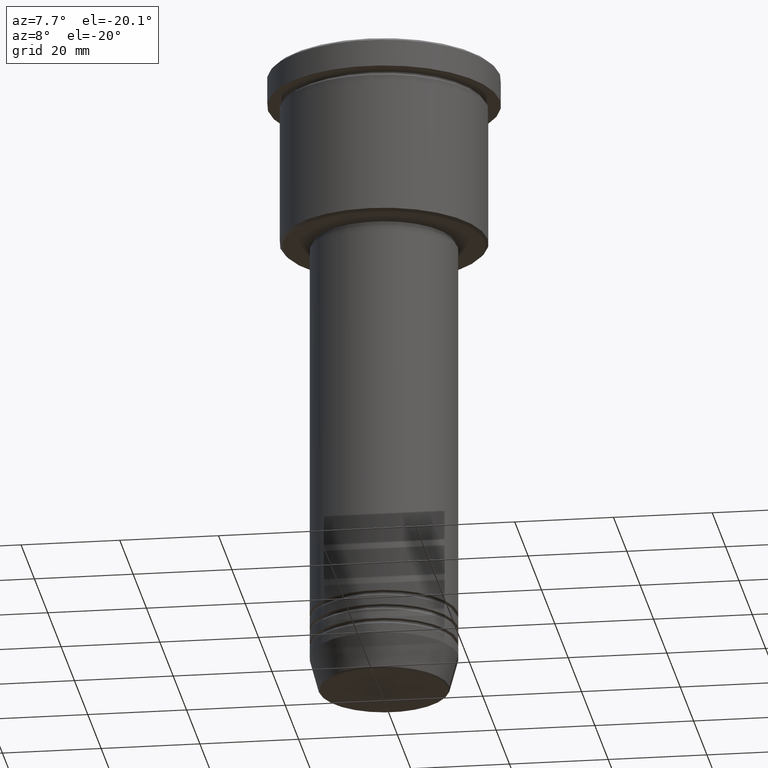
[diagram: clean part render]
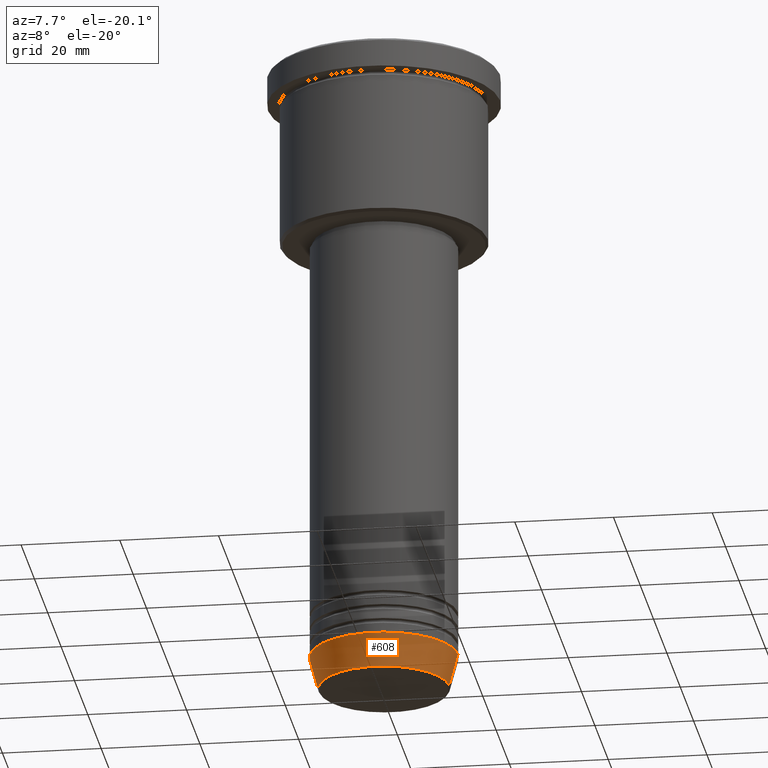
[diagram: same view with one face highlighted and labeled with its STEP entity id]
A machine part, auxiliary view. The second image highlights one B-rep face of the part: STEP entity #608.
In plain terms, the highlighted conical surface has half-angle 15 deg.
Its self-contained STEP definition (entity closure, byte-faithful):
#8 = ORIENTED_EDGE ( 'NONE', *, *, #981, .F. ) ;
#31 = DIRECTION ( 'NONE',  ( -0.000000000000000000, -0.000000000000000000, 1.000000000000000000 ) ) ;
#51 = FACE_OUTER_BOUND ( 'NONE', #816, .T. ) ;
#64 = DIRECTION ( 'NONE',  ( -0.000000000000000000, -0.000000000000000000, 1.000000000000000000 ) ) ;
#109 = VERTEX_POINT ( 'NONE', #899 ) ;
#112 = DIRECTION ( 'NONE',  ( 0.2588190451025213501, 0.000000000000000000, 0.9659258262890680902 ) ) ;
#117 = DIRECTION ( 'NONE',  ( -0.2588190451025213501, 3.169619151431772337E-17, 0.9659258262890680902 ) ) ;
#123 = CARTESIAN_POINT ( 'NONE',  ( -15.00000000000000000, 1.836970198721029589E-15, -124.0000000000000000 ) ) ;
#177 = CARTESIAN_POINT ( 'NONE',  ( -13.22365507213719305, 1.728200442216588386E-15, -130.6294095225512422 ) ) ;
#269 = LINE ( 'NONE', #639, #1083 ) ;
#270 = EDGE_CURVE ( 'NONE', #109, #972, #269, .T. ) ;
#410 = VECTOR ( 'NONE', #117, 1000.000000000000000 ) ;
#415 = DIRECTION ( 'NONE',  ( 1.000000000000000000, 0.000000000000000000, 0.000000000000000000 ) ) ;
#446 = AXIS2_PLACEMENT_3D ( 'NONE', #1053, #64, #619 ) ;
#495 = CARTESIAN_POINT ( 'NONE',  ( -15.00000000000000000, 1.836970198721029589E-15, -124.0000000000000000 ) ) ;
#502 = AXIS2_PLACEMENT_3D ( 'NONE', #945, #31, #415 ) ;
#529 = CARTESIAN_POINT ( 'NONE',  ( 0.000000000000000000, 0.000000000000000000, -124.0000000000000000 ) ) ;
#562 = CIRCLE ( 'NONE', #502, 15.00000000000000000 ) ;
#574 = ORIENTED_EDGE ( 'NONE', *, *, #1081, .T. ) ;
#608 = ADVANCED_FACE ( 'NONE', ( #51 ), #903, .T. ) ;
#619 = DIRECTION ( 'NONE',  ( 1.000000000000000000, 0.000000000000000000, 0.000000000000000000 ) ) ;
#639 = CARTESIAN_POINT ( 'NONE',  ( 15.00000000000000000, 0.000000000000000000, -124.0000000000000000 ) ) ;
#674 = AXIS2_PLACEMENT_3D ( 'NONE', #529, #795, #1070 ) ;
#689 = LINE ( 'NONE', #495, #410 ) ;
#784 = CARTESIAN_POINT ( 'NONE',  ( 15.00000000000000000, 0.000000000000000000, -124.0000000000000000 ) ) ;
#786 = VERTEX_POINT ( 'NONE', #177 ) ;
#795 = DIRECTION ( 'NONE',  ( -0.000000000000000000, -0.000000000000000000, 1.000000000000000000 ) ) ;
#816 = EDGE_LOOP ( 'NONE', ( #8, #574, #1147, #1051 ) ) ;
#889 = VERTEX_POINT ( 'NONE', #123 ) ;
#899 = CARTESIAN_POINT ( 'NONE',  ( 13.22365507213719305, 0.000000000000000000, -130.6294095225512422 ) ) ;
#903 = CONICAL_SURFACE ( 'NONE', #674, 15.00000000000000000, 0.2617993877991500740 ) ;
#941 = EDGE_CURVE ( 'NONE', #889, #972, #562, .T. ) ;
#945 = CARTESIAN_POINT ( 'NONE',  ( 0.000000000000000000, 0.000000000000000000, -124.0000000000000000 ) ) ;
#972 = VERTEX_POINT ( 'NONE', #784 ) ;
#981 = EDGE_CURVE ( 'NONE', #786, #889, #689, .T. ) ;
#1051 = ORIENTED_EDGE ( 'NONE', *, *, #941, .F. ) ;
#1053 = CARTESIAN_POINT ( 'NONE',  ( 0.000000000000000000, 0.000000000000000000, -130.6294095225512422 ) ) ;
#1058 = CIRCLE ( 'NONE', #446, 13.22365507213719305 ) ;
#1070 = DIRECTION ( 'NONE',  ( 1.000000000000000000, 0.000000000000000000, 0.000000000000000000 ) ) ;
#1081 = EDGE_CURVE ( 'NONE', #786, #109, #1058, .T. ) ;
#1083 = VECTOR ( 'NONE', #112, 1000.000000000000000 ) ;
#1147 = ORIENTED_EDGE ( 'NONE', *, *, #270, .T. ) ;